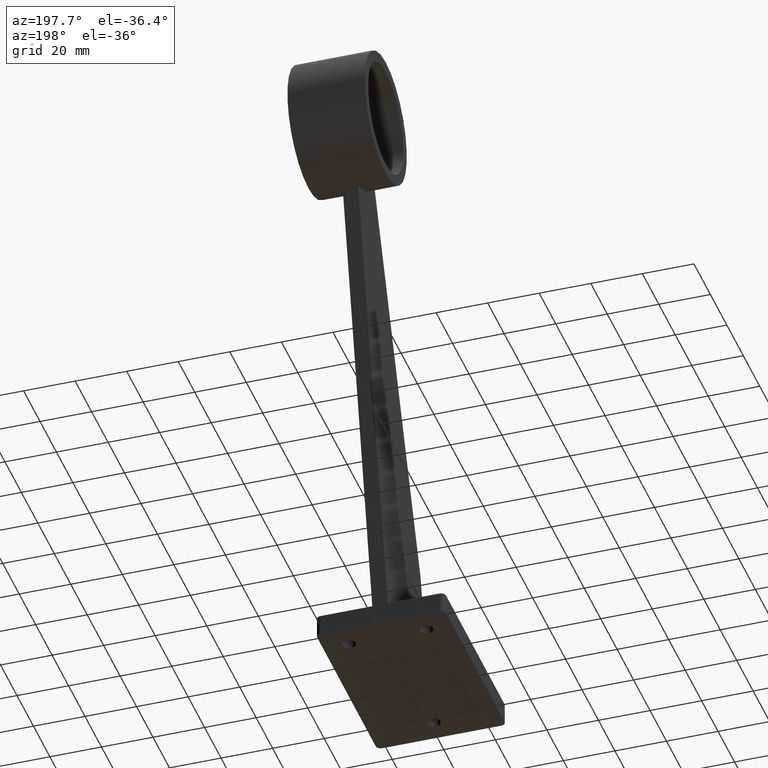
[diagram: clean part render]
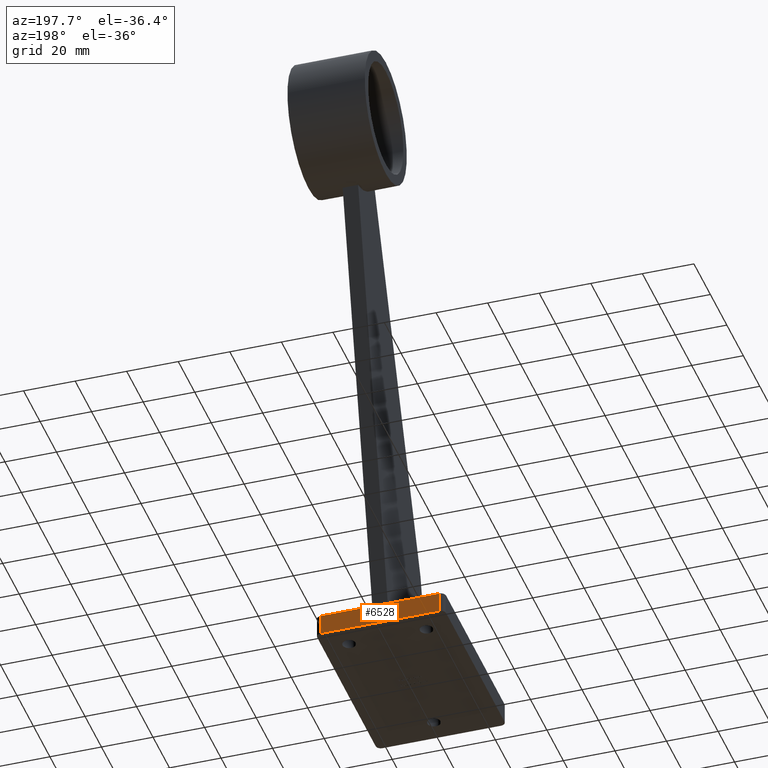
[diagram: same view with one face highlighted and labeled with its STEP entity id]
A machine part, auxiliary view. The second image highlights one B-rep face of the part: STEP entity #6528.
In plain terms, the highlighted planar face has unit normal (0, -1, 0).
Its self-contained STEP definition (entity closure, byte-faithful):
#317 = LINE ( 'NONE', #12751, #11635 ) ;
#351 = VECTOR ( 'NONE', #11863, 1000.000000000000000 ) ;
#1427 = VECTOR ( 'NONE', #9736, 1000.000000000000000 ) ;
#2313 = PLANE ( 'NONE',  #5980 ) ;
#2546 = VERTEX_POINT ( 'NONE', #8990 ) ;
#2549 = CARTESIAN_POINT ( 'NONE',  ( 3.000000000000000000, 37.49999999999999289, 8.000000000000001776 ) ) ;
#2961 = VERTEX_POINT ( 'NONE', #14288 ) ;
#3482 = DIRECTION ( 'NONE',  ( 0.000000000000000000, -1.000000000000000000, 0.000000000000000000 ) ) ;
#3718 = CARTESIAN_POINT ( 'NONE',  ( -25.00000000000000355, 37.50000000000000000, 8.000000000000000000 ) ) ;
#3852 = VERTEX_POINT ( 'NONE', #12949 ) ;
#4171 = CARTESIAN_POINT ( 'NONE',  ( -3.000000000000000000, 37.49999999999999289, 8.000000000000001776 ) ) ;
#4305 = EDGE_CURVE ( 'NONE', #2546, #12935, #317, .T. ) ;
#4571 = CARTESIAN_POINT ( 'NONE',  ( -25.00000000000000355, 37.50000000000000000, 8.000000000000000000 ) ) ;
#4647 = ORIENTED_EDGE ( 'NONE', *, *, #6973, .F. ) ;
#4679 = ORIENTED_EDGE ( 'NONE', *, *, #6951, .F. ) ;
#4859 = LINE ( 'NONE', #3718, #11120 ) ;
#5102 = CARTESIAN_POINT ( 'NONE',  ( -25.00000000000000355, 37.50000000000000000, 0.000000000000000000 ) ) ;
#5176 = DIRECTION ( 'NONE',  ( 0.000000000000000000, 0.000000000000000000, -1.000000000000000000 ) ) ;
#5980 = AXIS2_PLACEMENT_3D ( 'NONE', #4571, #3482, #10309 ) ;
#6528 = ADVANCED_FACE ( 'NONE', ( #9707 ), #2313, .F. ) ;
#6559 = ORIENTED_EDGE ( 'NONE', *, *, #10518, .T. ) ;
#6947 = VECTOR ( 'NONE', #11914, 1000.000000000000000 ) ;
#6951 = EDGE_CURVE ( 'NONE', #8464, #14098, #7185, .T. ) ;
#6973 = EDGE_CURVE ( 'NONE', #2546, #8464, #4859, .T. ) ;
#6999 = EDGE_CURVE ( 'NONE', #2961, #3852, #14490, .T. ) ;
#7185 = LINE ( 'NONE', #2549, #351 ) ;
#7268 = CARTESIAN_POINT ( 'NONE',  ( 22.99999999999999645, 37.50000000000000000, 0.000000000000000000 ) ) ;
#7605 = LINE ( 'NONE', #9552, #14565 ) ;
#8242 = ORIENTED_EDGE ( 'NONE', *, *, #4305, .T. ) ;
#8246 = EDGE_LOOP ( 'NONE', ( #6559, #12262, #11415, #4679, #4647, #8242 ) ) ;
#8464 = VERTEX_POINT ( 'NONE', #12672 ) ;
#8990 = CARTESIAN_POINT ( 'NONE',  ( 22.99999999999999645, 37.50000000000000000, 8.000000000000000000 ) ) ;
#9552 = CARTESIAN_POINT ( 'NONE',  ( -25.00000000000000355, 37.50000000000000000, 8.000000000000000000 ) ) ;
#9707 = FACE_OUTER_BOUND ( 'NONE', #8246, .T. ) ;
#9736 = DIRECTION ( 'NONE',  ( -0.000000000000000000, -0.000000000000000000, 1.000000000000000000 ) ) ;
#10309 = DIRECTION ( 'NONE',  ( 0.000000000000000000, -0.000000000000000000, -1.000000000000000000 ) ) ;
#10518 = EDGE_CURVE ( 'NONE', #12935, #2961, #10540, .T. ) ;
#10540 = LINE ( 'NONE', #5102, #6947 ) ;
#11120 = VECTOR ( 'NONE', #11816, 1000.000000000000000 ) ;
#11415 = ORIENTED_EDGE ( 'NONE', *, *, #14842, .F. ) ;
#11635 = VECTOR ( 'NONE', #5176, 1000.000000000000000 ) ;
#11816 = DIRECTION ( 'NONE',  ( -1.000000000000000000, -0.000000000000000000, -0.000000000000000000 ) ) ;
#11863 = DIRECTION ( 'NONE',  ( -1.000000000000000000, -0.000000000000000000, -0.000000000000000000 ) ) ;
#11914 = DIRECTION ( 'NONE',  ( -1.000000000000000000, -0.000000000000000000, -0.000000000000000000 ) ) ;
#12057 = DIRECTION ( 'NONE',  ( -1.000000000000000000, -0.000000000000000000, -0.000000000000000000 ) ) ;
#12262 = ORIENTED_EDGE ( 'NONE', *, *, #6999, .T. ) ;
#12672 = CARTESIAN_POINT ( 'NONE',  ( 3.000000000000000000, 37.49999999999999289, 8.000000000000001776 ) ) ;
#12751 = CARTESIAN_POINT ( 'NONE',  ( 22.99999999999999645, 37.50000000000000000, 8.000000000000000000 ) ) ;
#12935 = VERTEX_POINT ( 'NONE', #7268 ) ;
#12949 = CARTESIAN_POINT ( 'NONE',  ( -23.00000000000000711, 37.50000000000000000, 8.000000000000000000 ) ) ;
#14098 = VERTEX_POINT ( 'NONE', #4171 ) ;
#14288 = CARTESIAN_POINT ( 'NONE',  ( -23.00000000000000711, 37.50000000000000000, 0.000000000000000000 ) ) ;
#14298 = CARTESIAN_POINT ( 'NONE',  ( -23.00000000000000711, 37.50000000000000000, 8.000000000000000000 ) ) ;
#14490 = LINE ( 'NONE', #14298, #1427 ) ;
#14565 = VECTOR ( 'NONE', #12057, 1000.000000000000000 ) ;
#14842 = EDGE_CURVE ( 'NONE', #14098, #3852, #7605, .T. ) ;